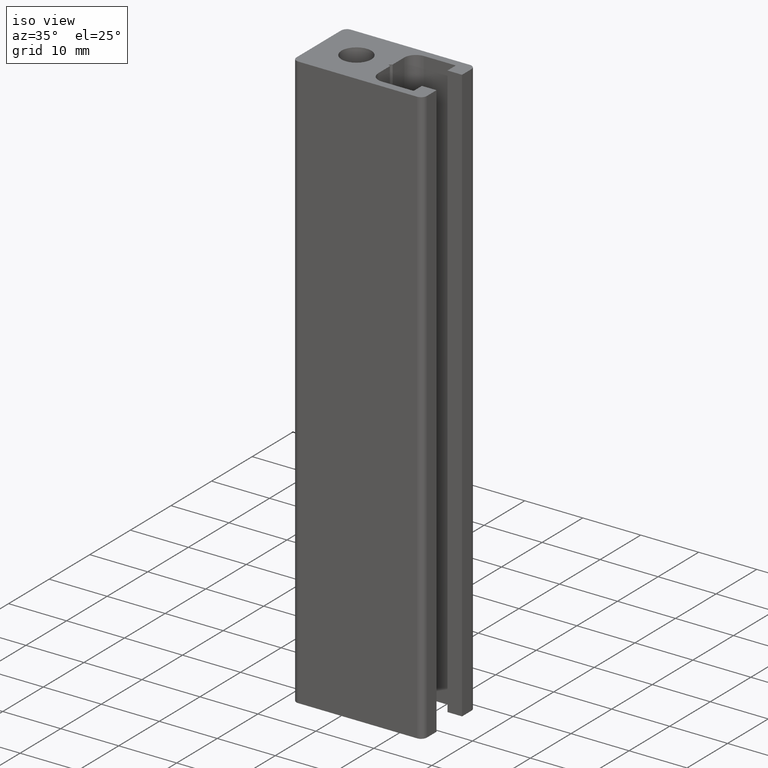
[diagram: clean part render]
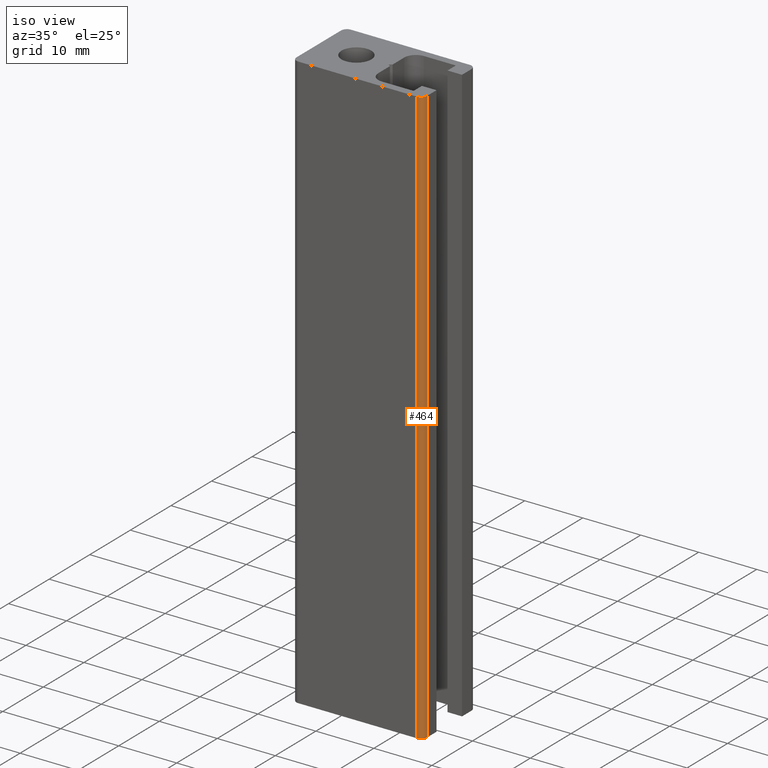
[diagram: same view with one face highlighted and labeled with its STEP entity id]
A machine part, iso view. The second image highlights one B-rep face of the part: STEP entity #464.
In plain terms, the highlighted cylindrical surface (edge-blend (fillet) strip) has radius 1 mm, axis along (0, 0, 1).
Its self-contained STEP definition (entity closure, byte-faithful):
#52=LINE('',#732,#103);
#57=LINE('',#750,#108);
#103=VECTOR('',#593,100.);
#108=VECTOR('',#610,100.);
#153=FACE_OUTER_BOUND('',#179,.T.);
#179=EDGE_LOOP('',(#391,#392,#393,#394));
#197=CIRCLE('',#499,0.999999999999996);
#198=CIRCLE('',#501,0.999999999999996);
#232=VERTEX_POINT('',#729);
#233=VERTEX_POINT('',#731);
#239=VERTEX_POINT('',#745);
#240=VERTEX_POINT('',#749);
#289=EDGE_CURVE('',#233,#232,#52,.T.);
#297=EDGE_CURVE('',#232,#239,#197,.T.);
#298=EDGE_CURVE('',#240,#239,#57,.T.);
#299=EDGE_CURVE('',#233,#240,#198,.T.);
#391=ORIENTED_EDGE('',*,*,#297,.T.);
#392=ORIENTED_EDGE('',*,*,#298,.F.);
#393=ORIENTED_EDGE('',*,*,#299,.F.);
#394=ORIENTED_EDGE('',*,*,#289,.T.);
#444=CYLINDRICAL_SURFACE('',#500,0.999999999999996);
#464=ADVANCED_FACE('',(#153),#444,.T.);
#499=AXIS2_PLACEMENT_3D('',#747,#606,#607);
#500=AXIS2_PLACEMENT_3D('',#748,#608,#609);
#501=AXIS2_PLACEMENT_3D('',#751,#611,#612);
#593=DIRECTION('',(0.,0.,1.));
#606=DIRECTION('center_axis',(0.,0.,-1.));
#607=DIRECTION('ref_axis',(0.,-1.,0.));
#608=DIRECTION('center_axis',(0.,0.,1.));
#609=DIRECTION('ref_axis',(0.,-1.,0.));
#610=DIRECTION('',(0.,0.,1.));
#611=DIRECTION('center_axis',(0.,0.,-1.));
#612=DIRECTION('ref_axis',(0.,-1.,0.));
#729=CARTESIAN_POINT('',(16.,-5.5,100.));
#731=CARTESIAN_POINT('',(16.,-5.5,0.));
#732=CARTESIAN_POINT('',(16.,-5.5,0.));
#745=CARTESIAN_POINT('',(15.,-6.5,100.));
#747=CARTESIAN_POINT('Origin',(15.,-5.5,100.));
#748=CARTESIAN_POINT('Origin',(15.,-5.5,0.));
#749=CARTESIAN_POINT('',(15.,-6.5,0.));
#750=CARTESIAN_POINT('',(15.,-6.5,0.));
#751=CARTESIAN_POINT('Origin',(15.,-5.5,0.));